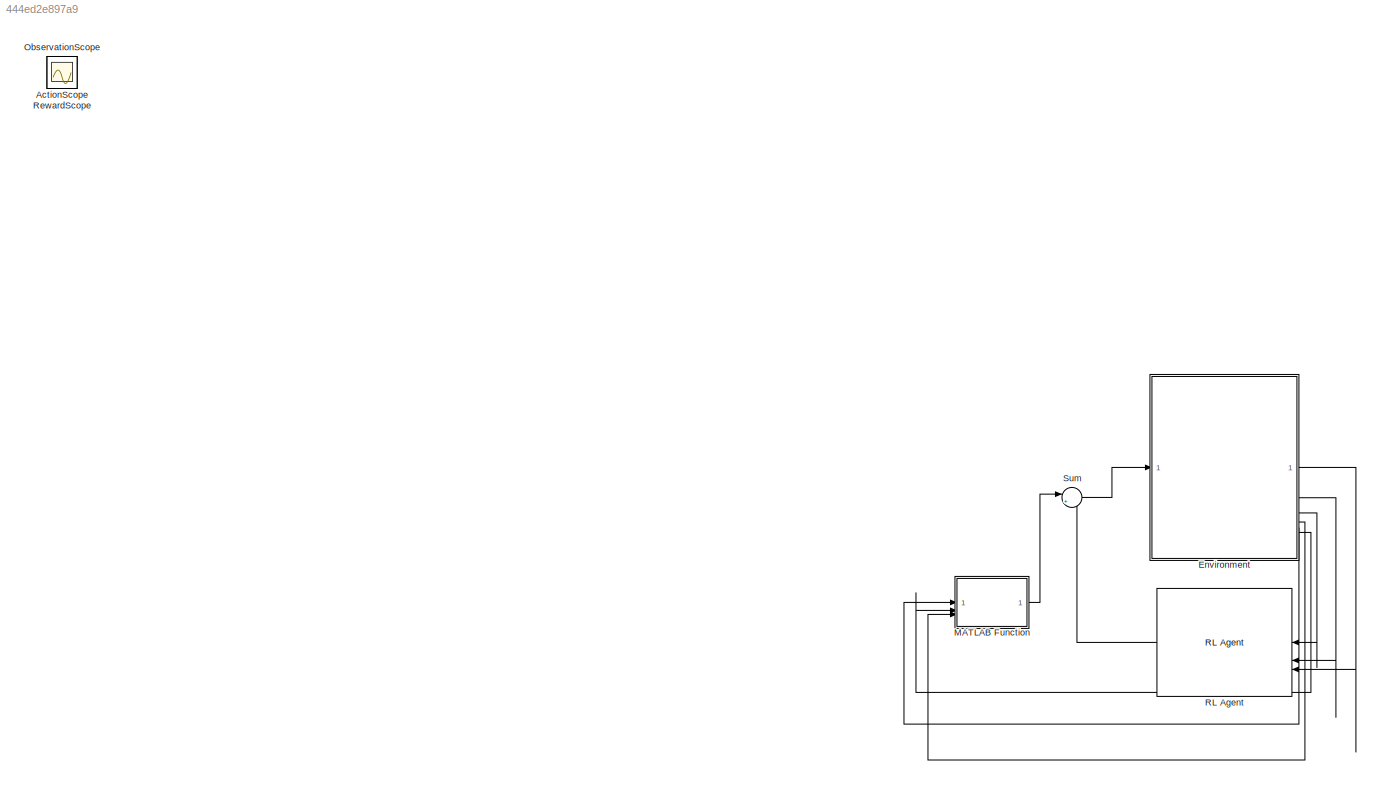
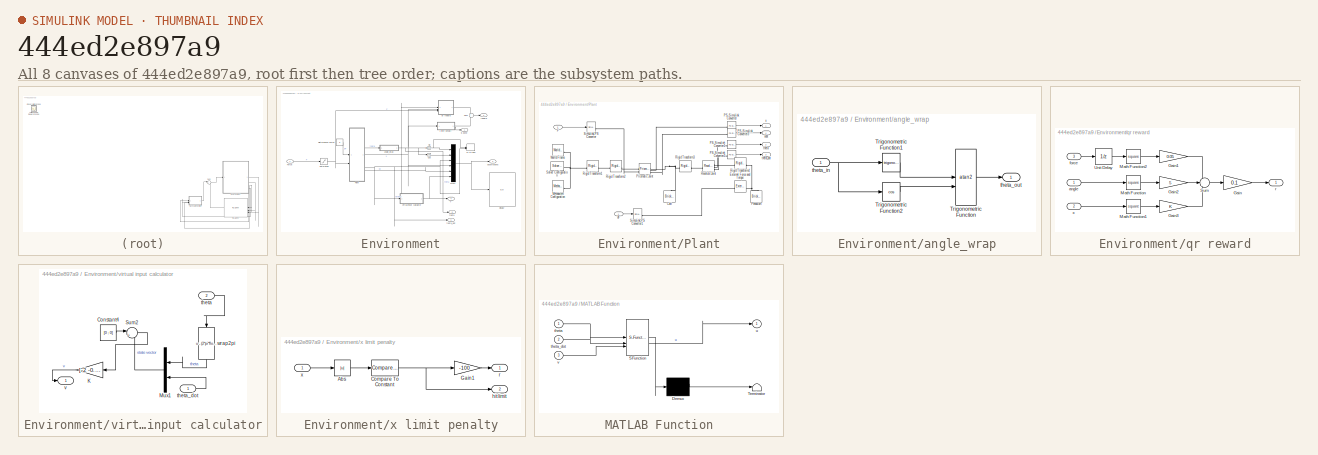
[diagram: thumbnail index - all 8 canvases of the model, root first then tree order]
MODEL slx_444ed2e897a9
KIND model
CONFIG AbsTol = auto
CONFIG EnableMultiTasking = off
CONFIG FixedStep = auto
CONFIG MaxStep = auto
CONFIG MinStep = auto
CONFIG RelTol = 1e-3
CONFIG SampleTimeConstraint = Unconstrained
CONFIG SolverName = VariableStepAuto
CONFIG StartTime = 0.0
CONFIG StopTime = 25
WORKSPACE source: MATLAB code (in-file)
WORKSPACE mCart = 1
WORKSPACE mPend = 1
WORKSPACE g = 9.81
WORKSPACE L = 0.5
WORKSPACE theta0 = 180
WORKSPACE Kd = 10
BLOCK [Scope] ActionScope
  Floating = off
  IOType = viewer
  NumInputPorts = 1
  ScopeSpecificationString = Simulink.scopes.TimeScopeBlockCfg('CurrentConfiguration', extmgr.ConfigurationSet(extmgr.Configuration('Core','General UI',true),extmgr.Configuration('Core','Source UI',true),extmgr.Configuration('Sources','WiredSimulink',true,'DataLoggingVariableName','ScopeData1'),extmgr.Configuration('Visuals','Time Domain',true,'SerializedDisplays',{struct('MinYLimReal','-16','MaxYLimReal','16','YLabelReal',''...<+1415ch>
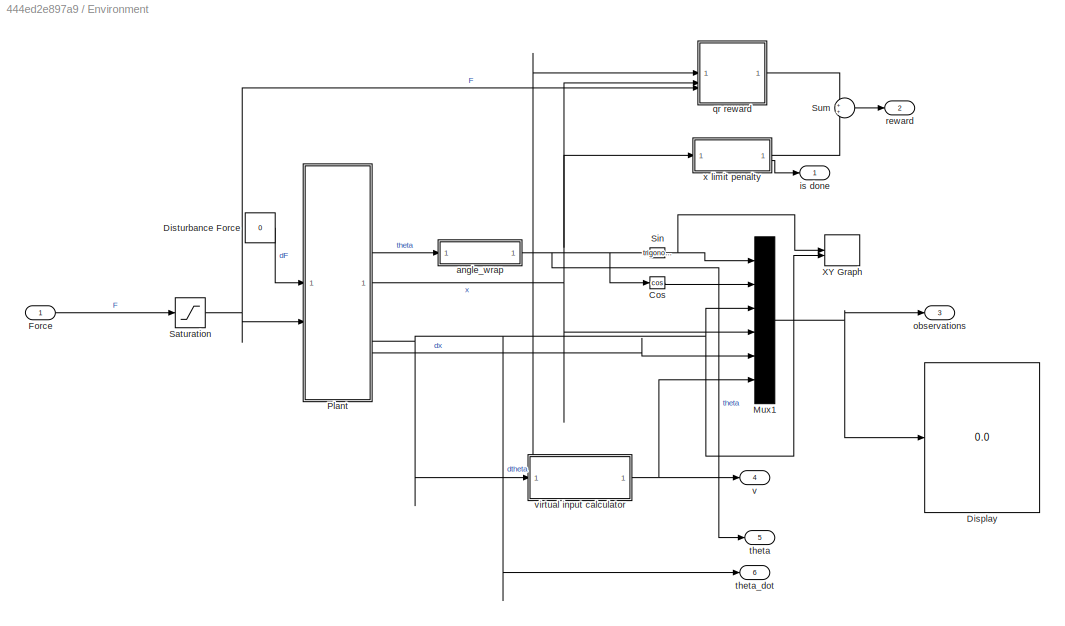
BLOCK [SubSystem] Environment
BLOCK [Trigonometry] Environment/Cos
  Operator = cos
BLOCK [Display] Environment/Display
  Decimation = 1
BLOCK [Constant] Environment/Disturbance Force
  Value = 0
BLOCK [Inport] Environment/Force
BLOCK [Mux] Environment/Mux1
  DisplayOption = bar
  Inputs = 6
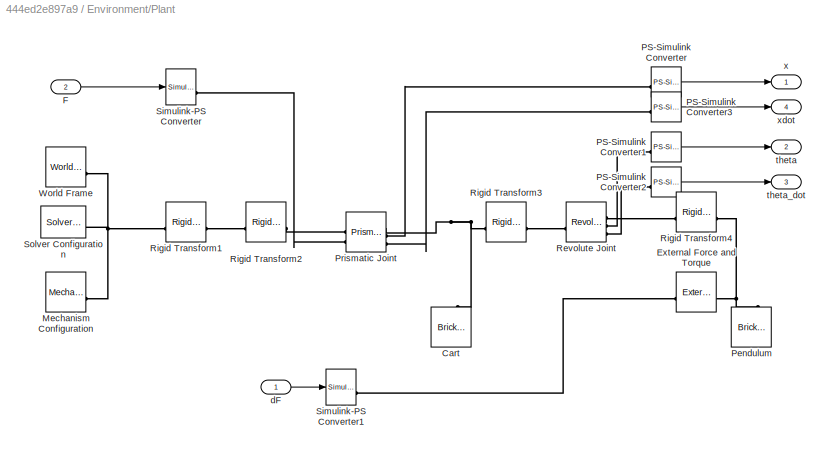
BLOCK [SubSystem] Environment/Plant
BLOCK [Reference] Environment/Plant/Cart  REF=sm_lib/Body Elements/Brick Solid
  NameLocation = right
  SourceBlock = sm_lib/Body Elements/Brick Solid
  SourceType = Brick Solid
BLOCK [Reference] Environment/Plant/External Force and Torque  REF=sm_lib/Forces and
Torques/External Force
and Torque
  SourceBlock = sm_lib/Forces and\nTorques/External Force\nand Torque
  SourceType = External Force\nand Torque
BLOCK [Inport] Environment/Plant/F
  Port = 2
BLOCK [Reference] Environment/Plant/Mechanism Configuration  REF=sm_lib/Utilities/Mechanism
Configuration
  SourceBlock = sm_lib/Utilities/Mechanism\nConfiguration
  SourceType = Mechanism\nConfiguration
BLOCK [Reference] Environment/Plant/PS-Simulink Converter  REF=nesl_utility/PS-Simulink
Converter
  SourceBlock = nesl_utility/PS-Simulink\nConverter
  SourceType = PS-Simulink\nConverter
BLOCK [Reference] Environment/Plant/PS-Simulink Converter1  REF=nesl_utility/PS-Simulink
Converter
  SourceBlock = nesl_utility/PS-Simulink\nConverter
  SourceType = PS-Simulink\nConverter
BLOCK [Reference] Environment/Plant/PS-Simulink Converter2  REF=nesl_utility/PS-Simulink
Converter
  SourceBlock = nesl_utility/PS-Simulink\nConverter
  SourceType = PS-Simulink\nConverter
BLOCK [Reference] Environment/Plant/PS-Simulink Converter3  REF=nesl_utility/PS-Simulink
Converter
  SourceBlock = nesl_utility/PS-Simulink\nConverter
  SourceType = PS-Simulink\nConverter
BLOCK [Reference] Environment/Plant/Pendulum  REF=sm_lib/Body Elements/Brick Solid
  NameLocation = right
  SourceBlock = sm_lib/Body Elements/Brick Solid
  SourceType = Brick Solid
BLOCK [Reference] Environment/Plant/Prismatic Joint  REF=sm_lib/Joints/Prismatic
Joint
  SourceBlock = sm_lib/Joints/Prismatic\nJoint
  SourceType = Prismatic\nJoint
BLOCK [Reference] Environment/Plant/Revolute Joint  REF=sm_lib/Joints/Revolute Joint
  SourceBlock = sm_lib/Joints/Revolute Joint
  SourceType = Revolute Joint
BLOCK [Reference] Environment/Plant/Rigid Transform1  REF=sm_lib/Frames and
Transforms/Rigid
Transform
  SourceBlock = sm_lib/Frames and\nTransforms/Rigid\nTransform
  SourceType = Rigid\nTransform
BLOCK [Reference] Environment/Plant/Rigid Transform2  REF=sm_lib/Frames and
Transforms/Rigid
Transform
  SourceBlock = sm_lib/Frames and\nTransforms/Rigid\nTransform
  SourceType = Rigid\nTransform
BLOCK [Reference] Environment/Plant/Rigid Transform3  REF=sm_lib/Frames and
Transforms/Rigid
Transform
  SourceBlock = sm_lib/Frames and\nTransforms/Rigid\nTransform
  SourceType = Rigid\nTransform
BLOCK [Reference] Environment/Plant/Rigid Transform4  REF=sm_lib/Frames and
Transforms/Rigid
Transform
  SourceBlock = sm_lib/Frames and\nTransforms/Rigid\nTransform
  SourceType = Rigid\nTransform
BLOCK [Reference] Environment/Plant/Simulink-PS Converter  REF=nesl_utility/Simulink-PS
Converter
  SourceBlock = nesl_utility/Simulink-PS\nConverter
  SourceType = Simulink-PS\nConverter
BLOCK [Reference] Environment/Plant/Simulink-PS Converter1  REF=nesl_utility/Simulink-PS
Converter
  SourceBlock = nesl_utility/Simulink-PS\nConverter
  SourceType = Simulink-PS\nConverter
BLOCK [Reference] Environment/Plant/Solver Configuration  REF=nesl_utility/Solver
Configuration
  SourceBlock = nesl_utility/Solver\nConfiguration
  SourceType = Solver\nConfiguration
BLOCK [Reference] Environment/Plant/World Frame  REF=sm_lib/Frames and
Transforms/World Frame
  SourceBlock = sm_lib/Frames and\nTransforms/World Frame
  SourceType = World Frame
BLOCK [Inport] Environment/Plant/dF
BLOCK [Outport] Environment/Plant/theta
  Port = 2
  VectorParamsAs1DForOutWhenUnconnected = off
BLOCK [Outport] Environment/Plant/theta_dot
  Port = 3
  VectorParamsAs1DForOutWhenUnconnected = off
BLOCK [Outport] Environment/Plant/x
  VectorParamsAs1DForOutWhenUnconnected = off
BLOCK [Outport] Environment/Plant/xdot
  Port = 4
  VectorParamsAs1DForOutWhenUnconnected = off
BLOCK [Saturate] Environment/Saturation
  LowerLimit = -15
  UpperLimit = 15
BLOCK [Trigonometry] Environment/Sin
BLOCK [Sum] Environment/Sum
BLOCK [Record] Environment/XY Graph
  CompatibilityTag = XY
  FileSettingsInternal = {"entries":[{"content":{"excelSettings":{"content":{},"type":"Streamout.ExcelSettings"}},"type":"Streamout.FileSettingStorage","uuid":"de41808e-ae22-4dc6-8bc2-0d97f6cd9afc"}],"packageUris":["http://schema.mathworks.com/mf0/streamout_blocks/R2020a"],"version":"1.0"}
  Layout = [1 1]
  SignalsInternal = {"entries":[{"content":{"signals":[{"content":{"blockPath":["rlCartPoleSimscapeModel_modified/Environment/XY Graph"],"channel":[],"dimensions":[1],"domain":"rlCartPoleSimscapeModel_modified/Environment/XY Graph","lineColor":"#a2142f","plots":[1],"port":1,"sid":[""],"signalID":2999,"signalName":"Sin"},"type":"RecordBlkView.Signal","uuid":"393c2bba-c4f1-448c-93c5-ff05ab3ecd69"},{"content":{"blockPat...<+502ch>
  VisualizationBindings = {"xyplotplugin":{"info":[{"series":[{"bindingParametersList":[{"parameter":"X-Axis","signalID":2999,"signalName":"Sin"},{"parameter":"Y-Axis","signalID":3003,"signalName":"dtheta"}],"seriesID":23812}],"subplotID":1}]}}
BLOCK [SubSystem] Environment/angle_wrap
BLOCK [Trigonometry] Environment/angle_wrap/Trigonometric Function
  Operator = atan2
BLOCK [Trigonometry] Environment/angle_wrap/Trigonometric Function1
BLOCK [Trigonometry] Environment/angle_wrap/Trigonometric Function2
  Operator = cos
BLOCK [Inport] Environment/angle_wrap/theta_in
BLOCK [Outport] Environment/angle_wrap/theta_out
  VectorParamsAs1DForOutWhenUnconnected = off
BLOCK [Outport] Environment/is done
  VectorParamsAs1DForOutWhenUnconnected = off
BLOCK [Outport] Environment/observations
  Port = 3
  VectorParamsAs1DForOutWhenUnconnected = off
BLOCK [SubSystem] Environment/qr reward
BLOCK [Gain] Environment/qr reward/Gain
  Gain = 0.1
BLOCK [Gain] Environment/qr reward/Gain1
  Gain = 0.05
BLOCK [Gain] Environment/qr reward/Gain2
  Gain = 5
BLOCK [Gain] Environment/qr reward/Gain3
BLOCK [Math] Environment/qr reward/Math Function
  Operator = square
  SignedPower = on
BLOCK [Math] Environment/qr reward/Math Function1
  Operator = square
  SignedPower = on
BLOCK [Math] Environment/qr reward/Math Function2
  Operator = square
  SignedPower = on
BLOCK [Sum] Environment/qr reward/Sum
  Inputs = ---
BLOCK [UnitDelay] Environment/qr reward/Unit Delay
  HasFrameUpgradeWarning = on
  SampleTime = Ts
BLOCK [Inport] Environment/qr reward/angle
BLOCK [Inport] Environment/qr reward/force
  Port = 3
BLOCK [Outport] Environment/qr reward/r
  VectorParamsAs1DForOutWhenUnconnected = off
BLOCK [Inport] Environment/qr reward/x
  Port = 2
BLOCK [Outport] Environment/reward
  Port = 2
  VectorParamsAs1DForOutWhenUnconnected = off
BLOCK [Outport] Environment/theta
  Port = 5
BLOCK [Outport] Environment/theta_dot
  Port = 6
BLOCK [Outport] Environment/v
  Port = 4
BLOCK [SubSystem] Environment/virtual input calculator
  PortSchema = {"entries":[{"content":{"sides":[{"content":{"connectorIds":["In1"]},"type":"ConnectorPlacement.EquallySpacedRectSide","uuid":"15b80633-f6ec-488d-a4f9-e68669753eb6"},{"content":{"connectorIds":["Out1"],"side":"RIGHT"},"type":"ConnectorPlacement.EquallySpacedRectSide","uuid":"81ee27ab-a4f5-4c34-92f9-174075fce528"},{"content":{"connectorIds":["In2"],"side":"TOP"},"type":"ConnectorPlacement.EquallySp...<+245ch>
BLOCK [Constant] Environment/virtual input calculator/Constant4
  Value = [0 ; 0]
BLOCK [Gain] Environment/virtual input calculator/K
  Gain = [-2 -0.4]
  Multiplication = Matrix(K*u)
  NameLocation = top
BLOCK [Mux] Environment/virtual input calculator/Mux1
  DisplayOption = bar
  Inputs = 2
  NameLocation = top
BLOCK [Sum] Environment/virtual input calculator/Sum2
  Inputs = |+-
BLOCK [Inport] Environment/virtual input calculator/theta
  Port = 2
BLOCK [Inport] Environment/virtual input calculator/theta_dot
BLOCK [Outport] Environment/virtual input calculator/v
BLOCK [Fcn] Environment/virtual input calculator/wrap2pi
  Expr = u - (2*pi*floor((u+pi)/(2*pi)))
  NameLocation = left
BLOCK [SubSystem] Environment/x limit penalty
BLOCK [Abs] Environment/x limit penalty/Abs
  SaturateOnIntegerOverflow = off
BLOCK [Reference] Environment/x limit penalty/Compare To Constant  REF=simulink/Logic and Bit
Operations/Compare
To Constant
  SourceBlock = simulink/Logic and Bit\nOperations/Compare\nTo Constant
  SourceType = Compare To Constant
BLOCK [Gain] Environment/x limit penalty/Gain1
  Gain = -100
BLOCK [Outport] Environment/x limit penalty/hit limit
  Port = 2
  VectorParamsAs1DForOutWhenUnconnected = off
BLOCK [Outport] Environment/x limit penalty/r
  VectorParamsAs1DForOutWhenUnconnected = off
BLOCK [Inport] Environment/x limit penalty/x
BLOCK [SubSystem] MATLAB Function
  ErrorFcn = Stateflow.Translate.translate
  LibrarySourceBlock = simulink/User-Defined\nFunctions/MATLAB Function
  PermitHierarchicalResolution = ExplicitOnly
  SFBlockType = MATLAB Function
  TreatAsAtomicUnit = on
BLOCK [Demux] MATLAB Function/ Demux 
  Outputs = 1
BLOCK [S-Function] MATLAB Function/ SFunction 
  EnableBusSupport = on
  FunctionName = sf_sfun
  PortCounts = [3 2]
  SFcnIsStateOwnerBlock = off
  SFunctionDeploymentMode = off
  Tag = Stateflow S-Function 1
BLOCK [Terminator] MATLAB Function/ Terminator 
BLOCK [Inport] MATLAB Function/theta
BLOCK [Inport] MATLAB Function/theta_dot
  Port = 2
BLOCK [Outport] MATLAB Function/u
BLOCK [Inport] MATLAB Function/v
  Port = 3
BLOCK [Scope] ObservationScope
  Floating = off
  IOType = viewer
  NumInputPorts = 1
  ScopeSpecificationString = Simulink.scopes.TimeScopeBlockCfg('CurrentConfiguration', extmgr.ConfigurationSet(extmgr.Configuration('Core','General UI',true),extmgr.Configuration('Core','Source UI',true),extmgr.Configuration('Sources','WiredSimulink',true),extmgr.Configuration('Visuals','Time Domain',true,'SerializedDisplays',{struct('MinYLimReal','-0.2486','MaxYLimReal','0.02762','YLabelReal','','MinYLimMag','0.00000','MaxYL...<+3376ch>
BLOCK [Reference] RL Agent  REF=rllib/RL Agent
  SourceBlock = rllib/RL Agent
  SourceType = RL Agent
BLOCK [Scope] RewardScope
  Floating = off
  IOType = viewer
  NumInputPorts = 1
  ScopeSpecificationString = Simulink.scopes.TimeScopeBlockCfg('CurrentConfiguration', extmgr.ConfigurationSet(extmgr.Configuration('Core','General UI',true),extmgr.Configuration('Core','Source UI',true),extmgr.Configuration('Sources','WiredSimulink',true,'DataLoggingVariableName','ScopeData2'),extmgr.Configuration('Visuals','Time Domain',true,'SerializedDisplays',{struct('MinYLimReal','-0.70946','MaxYLimReal','-0.42421','YLa...<+1394ch>
BLOCK [Sum] Sum
  Inputs = |++
LINE Environment/Cos:1 -> Environment/Mux1:2
LINE Environment/Disturbance Force:1 -> Environment/Plant:1
LINE Environment/Force:1 -> Environment/Saturation:1
NET Environment/Mux1:1 -> Environment/Display:1, Environment/observations:1
LINE Environment/Plant/F:1 -> Environment/Plant/Simulink-PS Converter:1
LINE Environment/Plant/PS-Simulink Converter1:1 -> Environment/Plant/theta:1
LINE Environment/Plant/PS-Simulink Converter2:1 -> Environment/Plant/theta_dot:1
LINE Environment/Plant/PS-Simulink Converter3:1 -> Environment/Plant/xdot:1
LINE Environment/Plant/PS-Simulink Converter:1 -> Environment/Plant/x:1
LINE Environment/Plant/dF:1 -> Environment/Plant/Simulink-PS Converter1:1
NET Environment/Plant:1 -> Environment/Mux1:4, Environment/qr reward:2, Environment/x limit penalty:1
LINE Environment/Plant:2 -> Environment/angle_wrap:1
NET Environment/Plant:3 -> Environment/Mux1:3, Environment/XY Graph:2, Environment/theta_dot:1, Environment/virtual input calculator:1
LINE Environment/Plant:4 -> Environment/Mux1:5
NET Environment/Saturation:1 -> Environment/Plant:2, Environment/qr reward:3
NET Environment/Sin:1 -> Environment/Mux1:1, Environment/XY Graph:1
LINE Environment/Sum:1 -> Environment/reward:1
LINE Environment/angle_wrap/Trigonometric Function1:1 -> Environment/angle_wrap/Trigonometric Function:1
LINE Environment/angle_wrap/Trigonometric Function2:1 -> Environment/angle_wrap/Trigonometric Function:2
LINE Environment/angle_wrap/Trigonometric Function:1 -> Environment/angle_wrap/theta_out:1
NET Environment/angle_wrap/theta_in:1 -> Environment/angle_wrap/Trigonometric Function1:1, Environment/angle_wrap/Trigonometric Function2:1
NET Environment/angle_wrap:1 -> Environment/Cos:1, Environment/Sin:1, Environment/qr reward:1, Environment/theta:1, Environment/virtual input calculator:2
LINE Environment/qr reward/Gain1:1 -> Environment/qr reward/Sum:1
LINE Environment/qr reward/Gain2:1 -> Environment/qr reward/Sum:2
LINE Environment/qr reward/Gain3:1 -> Environment/qr reward/Sum:3
LINE Environment/qr reward/Gain:1 -> Environment/qr reward/r:1
LINE Environment/qr reward/Math Function1:1 -> Environment/qr reward/Gain3:1
LINE Environment/qr reward/Math Function2:1 -> Environment/qr reward/Gain1:1
LINE Environment/qr reward/Math Function:1 -> Environment/qr reward/Gain2:1
LINE Environment/qr reward/Sum:1 -> Environment/qr reward/Gain:1
LINE Environment/qr reward/Unit Delay:1 -> Environment/qr reward/Math Function2:1
LINE Environment/qr reward/angle:1 -> Environment/qr reward/Math Function:1
LINE Environment/qr reward/force:1 -> Environment/qr reward/Unit Delay:1
LINE Environment/qr reward/x:1 -> Environment/qr reward/Math Function1:1
LINE Environment/qr reward:1 -> Environment/Sum:1
LINE Environment/virtual input calculator/Constant4:1 -> Environment/virtual input calculator/Sum2:1
LINE Environment/virtual input calculator/K:1 -> Environment/virtual input calculator/v:1
LINE Environment/virtual input calculator/Mux1:1 -> Environment/virtual input calculator/Sum2:2
LINE Environment/virtual input calculator/Sum2:1 -> Environment/virtual input calculator/K:1
LINE Environment/virtual input calculator/theta:1 -> Environment/virtual input calculator/wrap2pi:1
LINE Environment/virtual input calculator/theta_dot:1 -> Environment/virtual input calculator/Mux1:2
LINE Environment/virtual input calculator/wrap2pi:1 -> Environment/virtual input calculator/Mux1:1
NET Environment/virtual input calculator:1 -> Environment/Mux1:6, Environment/v:1
LINE Environment/x limit penalty/Abs:1 -> Environment/x limit penalty/Compare To Constant:1
NET Environment/x limit penalty/Compare To Constant:1 -> Environment/x limit penalty/Gain1:1, Environment/x limit penalty/hit limit:1
LINE Environment/x limit penalty/Gain1:1 -> Environment/x limit penalty/r:1
LINE Environment/x limit penalty/x:1 -> Environment/x limit penalty/Abs:1
LINE Environment/x limit penalty:1 -> Environment/Sum:2
LINE Environment/x limit penalty:2 -> Environment/is done:1
LINE Environment:1 -> RL Agent:3
LINE Environment:2 -> RL Agent:2
LINE Environment:3 -> RL Agent:1
LINE Environment:4 -> MATLAB Function:3
LINE Environment:5 -> MATLAB Function:1
LINE Environment:6 -> MATLAB Function:2
LINE MATLAB Function:1 -> Sum:1
LINE RL Agent:1 -> Sum:2
LINE Sum:1 -> Environment:1
PNET net1: Environment/Plant/Cart:RConn1 -- Environment/Plant/Prismatic Joint:RConn1 -- Environment/Plant/Rigid Transform3:LConn1
PLINE Environment/Plant/External Force and Torque:LConn1 -- Environment/Plant/Simulink-PS Converter1:RConn1
PNET net2: Environment/Plant/External Force and Torque:RConn1 -- Environment/Plant/Pendulum:RConn1 -- Environment/Plant/Rigid Transform4:RConn1
PNET net3: Environment/Plant/Mechanism Configuration:RConn1 -- Environment/Plant/Rigid Transform1:LConn1 -- Environment/Plant/Solver Configuration:RConn1 -- Environment/Plant/World Frame:RConn1
PLINE Environment/Plant/PS-Simulink Converter1:LConn1 -- Environment/Plant/Revolute Joint:RConn2
PLINE Environment/Plant/PS-Simulink Converter2:LConn1 -- Environment/Plant/Revolute Joint:RConn3
PLINE Environment/Plant/PS-Simulink Converter3:LConn1 -- Environment/Plant/Prismatic Joint:RConn3
PLINE Environment/Plant/PS-Simulink Converter:LConn1 -- Environment/Plant/Prismatic Joint:RConn2
PLINE Environment/Plant/Prismatic Joint:LConn1 -- Environment/Plant/Rigid Transform2:RConn1
PLINE Environment/Plant/Prismatic Joint:LConn2 -- Environment/Plant/Simulink-PS Converter:RConn1
PLINE Environment/Plant/Revolute Joint:LConn1 -- Environment/Plant/Rigid Transform3:RConn1
PLINE Environment/Plant/Revolute Joint:RConn1 -- Environment/Plant/Rigid Transform4:LConn1
PLINE Environment/Plant/Rigid Transform1:RConn1 -- Environment/Plant/Rigid Transform2:LConn1
note: NET lines group one-source signal fan-out (src -> all destinations, sorted); 1:1 wires keep LINE; PNET lines group multi-terminal physical nets as a canonical sorted terminal list (undirected conserving connections); 2-terminal nets keep the pairwise PLINE form
CHART MATLAB Function states=1 transitions=1
  STATE_LABEL 'eML_blk_kernel()'
  STATE_LABEL 'SCRIPT:\nfunction u=linearizer(theta,theta_dot,v)\n    %syms mc mp theta x theta_dot x_dot l f g x_ddot theta_ddot\n    %syms theta theta_dot theta_ddot\n    %syms theta_val theta_dot_val virtual_input\n    \n%     L=0.5;\n%     g=9.8;\n%     m_cart=1;\n%     m_pole=1;\n%     \n%     eq1= (mc+mp)*x_ddot +mp*l*theta_ddot*cos(theta)-mp*l*theta_dot^2*sin(theta);\n%     eq2=mp*l*x_ddot*cos(theta)+mp*l^2*theta_ddo...<+532ch>'
CHART  states=0 transitions=0
